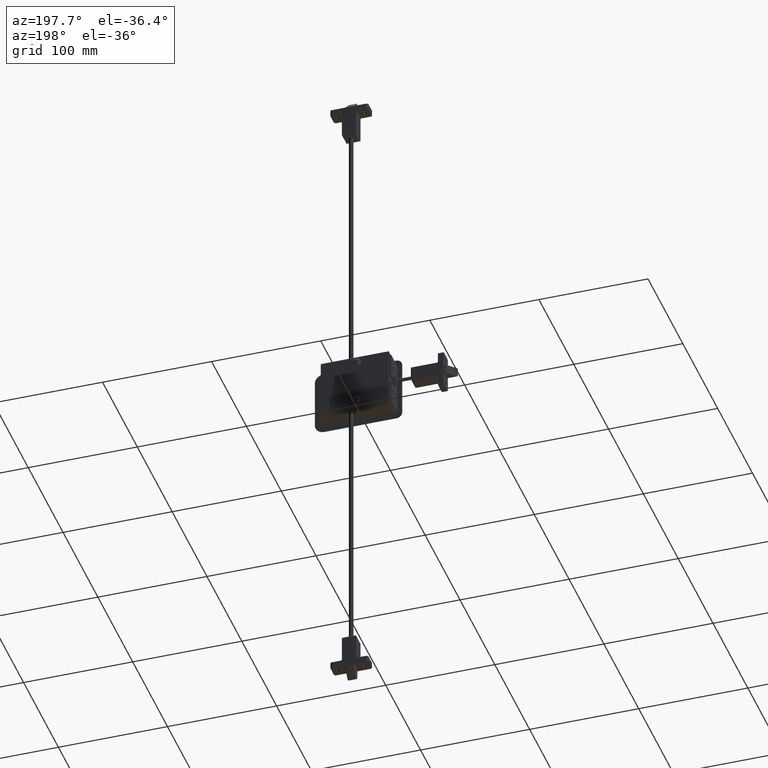
[diagram: clean part render]
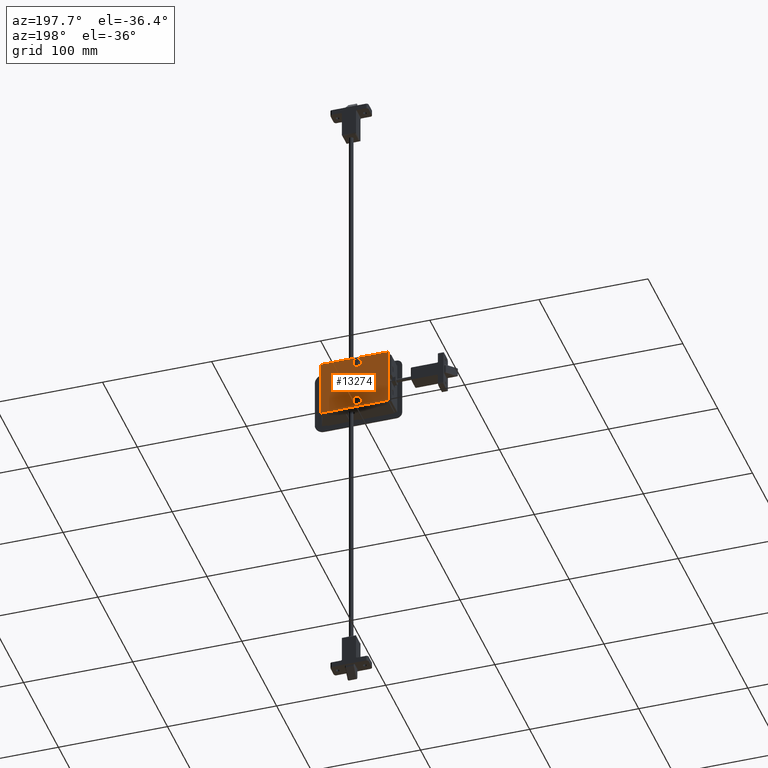
[diagram: same view with one face highlighted and labeled with its STEP entity id]
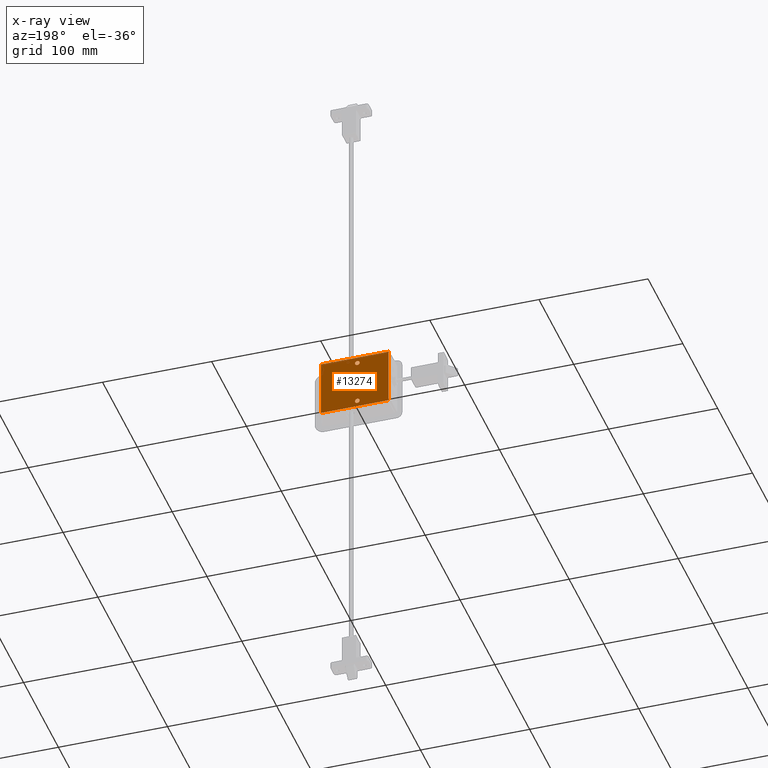
[diagram: x-ray of the same camera — body ghosted, the highlighted face saturated]
A machine part, auxiliary view. The second image highlights one B-rep face of the part: STEP entity #13274.
The next image is the same camera in x-ray: the body ghosted, the highlighted face saturated — about 0% of this face is hidden behind the body in this view.
In plain terms, the highlighted face is a freeform B-spline surface patch.
Its self-contained STEP definition (entity closure, byte-faithful):
#11853=CARTESIAN_POINT('',(22.006953846261300,43.750000000000000,-22.033489407781360));
#11854=VERTEX_POINT('',#11853);
#11860=CARTESIAN_POINT('',(20.499999682315671,43.750000000000000,-22.649999999999970));
#11861=VERTEX_POINT('',#11860);
#11862=CARTESIAN_POINT('',(20.499999682315671,43.750000000000000,-22.649999999999970));
#11863=CARTESIAN_POINT('',(20.743549814826540,43.750000000000007,-22.650179003490450));
#11864=CARTESIAN_POINT('',(21.300075521151019,43.749999999999922,-22.554351342063260));
#11865=CARTESIAN_POINT('',(21.783923978255832,43.750000000000050,-22.253354679047050));
#11866=CARTESIAN_POINT('',(22.006953846261300,43.750000000000000,-22.033489407781360));
#11867=B_SPLINE_CURVE_WITH_KNOTS('',3,(#11862,#11863,#11864,#11865,#11866),.UNSPECIFIED.,.F.,.U.,(4,1,4),(0.000000579519827,0.730693590432950,1.670006404911408),.UNSPECIFIED.);
#11868=EDGE_CURVE('',#11861,#11854,#11867,.T.);
#11870=CARTESIAN_POINT('',(18.350000000000001,43.750000000000000,-20.500000000000000));
#11871=VERTEX_POINT('',#11870);
#11872=CARTESIAN_POINT('',(18.350000000000001,43.750000000000000,-20.500000000000000));
#11873=CARTESIAN_POINT('',(18.349509081537530,43.750000000000021,-20.816728211946678));
#11874=CARTESIAN_POINT('',(18.468776864359569,43.750000000000043,-21.343984125196702));
#11875=CARTESIAN_POINT('',(18.864096221105981,43.749999999999922,-21.935224555355820));
#11876=CARTESIAN_POINT('',(19.481183320654392,43.750000000000192,-22.468351959470290));
#11877=CARTESIAN_POINT('',(20.077449883709331,43.749999999999872,-22.651381042715951));
#11878=CARTESIAN_POINT('',(20.499999682315671,43.750000000000000,-22.649999999999970));
#11879=B_SPLINE_CURVE_WITH_KNOTS('',3,(#11872,#11873,#11874,#11875,#11876,#11877,#11878),.UNSPECIFIED.,.F.,.U.,(4,1,1,1,4),(0.000002227310632,0.949955644128124,1.583371812779783,2.110957011027712,3.377550670595725),.UNSPECIFIED.);
#11880=EDGE_CURVE('',#11871,#11861,#11879,.T.);
#11882=CARTESIAN_POINT('',(20.500000317684339,43.750000000000000,-18.350000000000019));
#11883=VERTEX_POINT('',#11882);
#11884=CARTESIAN_POINT('',(20.500000317684339,43.750000000000000,-18.350000000000019));
#11885=CARTESIAN_POINT('',(20.183326115726199,43.749999999999943,-18.349562342178011));
#11886=CARTESIAN_POINT('',(19.515243159213210,43.750000000000107,-18.500215808438199));
#11887=CARTESIAN_POINT('',(18.617971425399400,43.749999999999879,-19.235262101407478));
#11888=CARTESIAN_POINT('',(18.348072779207680,43.750000000000071,-20.042326425261070));
#11889=CARTESIAN_POINT('',(18.350000000000001,43.750000000000000,-20.500000000000000));
#11890=B_SPLINE_CURVE_WITH_KNOTS('',3,(#11884,#11885,#11886,#11887,#11888,#11889),.UNSPECIFIED.,.F.,.U.,(4,1,1,4),(0.000002225637821,0.949955743484870,2.005310940079634,3.377551028734954),.UNSPECIFIED.);
#11891=EDGE_CURVE('',#11883,#11871,#11890,.T.);
#11893=CARTESIAN_POINT('',(22.033489520072401,43.750000000000000,-18.993046041418410));
#11894=VERTEX_POINT('',#11893);
#11895=CARTESIAN_POINT('',(22.033489520072401,43.750000000000000,-18.993046041418410));
#11896=CARTESIAN_POINT('',(21.859065196932921,43.750000000000021,-18.815292072171189));
#11897=CARTESIAN_POINT('',(21.388774736225649,43.749999999999957,-18.479686719389640));
#11898=CARTESIAN_POINT('',(20.820217218031608,43.749999999999979,-18.349464239655550));
#11899=CARTESIAN_POINT('',(20.500000317684339,43.750000000000000,-18.350000000000019));
#11900=B_SPLINE_CURVE_WITH_KNOTS('',3,(#11895,#11896,#11897,#11898,#11899),.UNSPECIFIED.,.F.,.U.,(4,1,4),(0.000000647408318,0.747121049704941,1.707544543402423),.UNSPECIFIED.);
#11901=EDGE_CURVE('',#11894,#11883,#11900,.T.);
#11977=CARTESIAN_POINT('',(22.649999999999999,43.750000000000000,-20.500000000000000));
#11978=VERTEX_POINT('',#11977);
#11979=CARTESIAN_POINT('',(22.649999999999999,43.750000000000000,-20.500000000000000));
#11980=CARTESIAN_POINT('',(22.650177555392990,43.749999999999993,-20.256448380300089));
#11981=CARTESIAN_POINT('',(22.554352934576311,43.750000000000057,-19.699927090781799));
#11982=CARTESIAN_POINT('',(22.253354657736828,43.749999999999957,-19.216075717112108));
#11983=CARTESIAN_POINT('',(22.033489520072401,43.750000000000000,-18.993046041418410));
#11984=B_SPLINE_CURVE_WITH_KNOTS('',3,(#11979,#11980,#11981,#11982,#11983),.UNSPECIFIED.,.F.,.U.,(4,1,4),(0.000000579545565,0.730693478946250,1.670006150221552),.UNSPECIFIED.);
#11985=EDGE_CURVE('',#11978,#11894,#11984,.T.);
#11987=CARTESIAN_POINT('',(22.006953846261300,43.750000000000000,-22.033489407781360));
#11988=CARTESIAN_POINT('',(22.235699321447932,43.750000000000050,-21.809422310553138));
#11989=CARTESIAN_POINT('',(22.550041675175549,43.750000000000007,-21.318057323818621));
#11990=CARTESIAN_POINT('',(22.650139470032659,43.749999999999979,-20.749021775235811));
#11991=CARTESIAN_POINT('',(22.649999999999999,43.750000000000000,-20.500000000000000));
#11992=B_SPLINE_CURVE_WITH_KNOTS('',3,(#11987,#11988,#11989,#11990,#11991),.UNSPECIFIED.,.F.,.U.,(4,1,4),(0.000000647436958,0.960424285150611,1.707544799524462),.UNSPECIFIED.);
#11993=EDGE_CURVE('',#11854,#11978,#11992,.T.);
#12033=CARTESIAN_POINT('',(22.006953846261300,43.750000000000000,18.966510592218640));
#12034=VERTEX_POINT('',#12033);
#12040=CARTESIAN_POINT('',(20.499999682315671,43.750000000000000,18.350000000000030));
#12041=VERTEX_POINT('',#12040);
#12042=CARTESIAN_POINT('',(20.499999682315671,43.750000000000000,18.350000000000030));
#12043=CARTESIAN_POINT('',(20.743545686632519,43.750000000000028,18.349838853173939));
#12044=CARTESIAN_POINT('',(21.300076129817018,43.750000000000021,18.445620418342280));
#12045=CARTESIAN_POINT('',(21.783924158926389,43.750000000000007,18.746660259355838));
#12046=CARTESIAN_POINT('',(22.006953846261300,43.750000000000000,18.966510592218640));
#12047=B_SPLINE_CURVE_WITH_KNOTS('',3,(#12042,#12043,#12044,#12045,#12046),.UNSPECIFIED.,.F.,.U.,(4,1,4),(0.000000579519966,0.730693590433029,1.670006404911405),.UNSPECIFIED.);
#12048=EDGE_CURVE('',#12041,#12034,#12047,.T.);
#12050=CARTESIAN_POINT('',(18.350000000000001,43.750000000000000,20.500000000000000));
#12051=VERTEX_POINT('',#12050);
#12052=CARTESIAN_POINT('',(18.350000000000001,43.750000000000000,20.500000000000000));
#12053=CARTESIAN_POINT('',(18.349883247218351,43.749999999999957,20.253751694987969));
#12054=CARTESIAN_POINT('',(18.441545691986750,43.749999999999972,19.726092408752031));
#12055=CARTESIAN_POINT('',(18.902034908813430,43.750000000000163,18.956528231486569));
#12056=CARTESIAN_POINT('',(19.655587389212879,43.749999999999638,18.453399589224919));
#12057=CARTESIAN_POINT('',(20.253783003131201,43.750000000000178,18.349926520932861));
#12058=CARTESIAN_POINT('',(20.499999682315671,43.750000000000000,18.350000000000030));
#12059=B_SPLINE_CURVE_WITH_KNOTS('',3,(#12052,#12053,#12054,#12055,#12056,#12057,#12058),.UNSPECIFIED.,.F.,.U.,(4,1,1,1,4),(0.000002227310616,0.738823032263391,1.583371812779873,2.638729865123342,3.377550670595726),.UNSPECIFIED.);
#12060=EDGE_CURVE('',#12051,#12041,#12059,.T.);
#12062=CARTESIAN_POINT('',(20.500000317684339,43.749999999999993,22.649999999999970));
#12063=VERTEX_POINT('',#12062);
#12064=CARTESIAN_POINT('',(20.500000317684339,43.749999999999993,22.649999999999970));
#12065=CARTESIAN_POINT('',(20.183288557798360,43.750000000000043,22.650457926932710));
#12066=CARTESIAN_POINT('',(19.585694642592120,43.749999999999950,22.515521193210802));
#12067=CARTESIAN_POINT('',(18.923194275851230,43.750000000000057,22.024192043108819));
#12068=CARTESIAN_POINT('',(18.468805579179271,43.749999999999943,21.343977020141821));
#12069=CARTESIAN_POINT('',(18.349500453558139,43.750000000000021,20.816710595408971));
#12070=CARTESIAN_POINT('',(18.350000000000001,43.750000000000000,20.500000000000000));
#12071=B_SPLINE_CURVE_WITH_KNOTS('',3,(#12064,#12065,#12066,#12067,#12068,#12069,#12070),.UNSPECIFIED.,.F.,.U.,(4,1,1,1,4),(0.000002225637791,0.949955743484859,1.794181275272841,2.427597511430180,3.377551028734952),.UNSPECIFIED.);
#12072=EDGE_CURVE('',#12063,#12051,#12071,.T.);
#12074=CARTESIAN_POINT('',(22.033489520072390,43.749999999999993,22.006953958581590));
#12075=VERTEX_POINT('',#12074);
#12076=CARTESIAN_POINT('',(22.033489520072390,43.749999999999993,22.006953958581590));
#12077=CARTESIAN_POINT('',(21.809422005565679,43.750000000000000,22.235698750883088));
#12078=CARTESIAN_POINT('',(21.318056935557671,43.749999999999950,22.550042048271919));
#12079=CARTESIAN_POINT('',(20.749022612829719,43.749999999999993,22.650138889271592));
#12080=CARTESIAN_POINT('',(20.500000317684339,43.749999999999993,22.649999999999970));
#12081=B_SPLINE_CURVE_WITH_KNOTS('',3,(#12076,#12077,#12078,#12079,#12080),.UNSPECIFIED.,.F.,.U.,(4,1,4),(0.000000647408544,0.960424141145897,1.707544543402414),.UNSPECIFIED.);
#12082=EDGE_CURVE('',#12075,#12063,#12081,.T.);
#12157=CARTESIAN_POINT('',(22.649999999999999,43.750000000000000,20.500000000000000));
#12158=VERTEX_POINT('',#12157);
#12159=CARTESIAN_POINT('',(22.649999999999999,43.750000000000000,20.500000000000000));
#12160=CARTESIAN_POINT('',(22.650469528133019,43.750000000000007,20.813158454760881));
#12161=CARTESIAN_POINT('',(22.526111420103572,43.749999999999993,21.369311348689319));
#12162=CARTESIAN_POINT('',(22.204284470082460,43.750000000000007,21.833332690497439));
#12163=CARTESIAN_POINT('',(22.033489520072390,43.749999999999993,22.006953958581590));
#12164=B_SPLINE_CURVE_WITH_KNOTS('',3,(#12159,#12160,#12161,#12162,#12163),.UNSPECIFIED.,.F.,.U.,(4,1,4),(0.000000579545428,0.939313250781041,1.670006150221550),.UNSPECIFIED.);
#12165=EDGE_CURVE('',#12158,#12075,#12164,.T.);
#12167=CARTESIAN_POINT('',(22.006953846261300,43.750000000000000,18.966510592218640));
#12168=CARTESIAN_POINT('',(22.235733587467081,43.750000000000099,19.190574941759959));
#12169=CARTESIAN_POINT('',(22.549957977390370,43.749999999999801,19.681953418574111));
#12170=CARTESIAN_POINT('',(22.650191406120172,43.750000000000142,20.250970874763080));
#12171=CARTESIAN_POINT('',(22.649999999999999,43.750000000000000,20.500000000000000));
#12172=B_SPLINE_CURVE_WITH_KNOTS('',3,(#12167,#12168,#12169,#12170,#12171),.UNSPECIFIED.,.F.,.U.,(4,1,4),(0.000000647436865,0.960424285150654,1.707544799524462),.UNSPECIFIED.);
#12173=EDGE_CURVE('',#12034,#12158,#12172,.T.);
#12869=CARTESIAN_POINT('',(54.0,43.750000000000000,-26.300000000000001));
#12870=VERTEX_POINT('',#12869);
#12880=CARTESIAN_POINT('',(54.0,43.750000000000000,26.300000000000001));
#12881=VERTEX_POINT('',#12880);
#12882=CARTESIAN_POINT('',(54.0,43.750000000000000,-26.300000000000001));
#12883=CARTESIAN_POINT('',(54.0,43.750000000000000,26.300000000000001));
#12884=QUASI_UNIFORM_CURVE('',1,(#12882,#12883),.UNSPECIFIED.,.F.,.U.);
#12885=EDGE_CURVE('',#12870,#12881,#12884,.T.);
#12959=CARTESIAN_POINT('',(-8.0,43.750000000000000,26.300000000000001));
#12960=VERTEX_POINT('',#12959);
#12970=CARTESIAN_POINT('',(-8.0,43.750000000000000,-26.300000000000001));
#12971=VERTEX_POINT('',#12970);
#12972=CARTESIAN_POINT('',(-8.0,43.750000000000000,-26.300000000000001));
#12973=CARTESIAN_POINT('',(-8.0,43.750000000000000,26.300000000000001));
#12974=QUASI_UNIFORM_CURVE('',1,(#12972,#12973),.UNSPECIFIED.,.F.,.U.);
#12975=EDGE_CURVE('',#12971,#12960,#12974,.T.);
#13082=CARTESIAN_POINT('',(-8.0,43.750000000000000,26.300000000000001));
#13083=CARTESIAN_POINT('',(54.0,43.750000000000000,26.300000000000001));
#13084=QUASI_UNIFORM_CURVE('',1,(#13082,#13083),.UNSPECIFIED.,.F.,.U.);
#13085=EDGE_CURVE('',#12960,#12881,#13084,.T.);
#13113=CARTESIAN_POINT('',(-8.0,43.750000000000000,-26.300000000000001));
#13114=CARTESIAN_POINT('',(54.0,43.750000000000000,-26.300000000000001));
#13115=QUASI_UNIFORM_CURVE('',1,(#13113,#13114),.UNSPECIFIED.,.F.,.U.);
#13116=EDGE_CURVE('',#12971,#12870,#13115,.T.);
#13247=CARTESIAN_POINT('',(-11.096899879831970,43.750000000000000,-28.927369216355689));
#13248=CARTESIAN_POINT('',(-11.096899879831970,43.750000000000000,28.927367335233100));
#13249=CARTESIAN_POINT('',(57.096901542801561,43.750000000000000,-28.927369216355689));
#13250=CARTESIAN_POINT('',(57.096901542801561,43.750000000000000,28.927367335233100));
#13251=B_SPLINE_SURFACE_WITH_KNOTS('',1,1,((#13247,#13249),(#13248,#13250)),.UNSPECIFIED.,.F.,.F.,.U.,(2,2),(2,2),(0.0,57.854736551588793),(0.0,68.193801422633527),.UNSPECIFIED.);
#13252=ORIENTED_EDGE('',*,*,#12885,.F.);
#13253=ORIENTED_EDGE('',*,*,#13116,.F.);
#13254=ORIENTED_EDGE('',*,*,#12975,.T.);
#13255=ORIENTED_EDGE('',*,*,#13085,.T.);
#13256=EDGE_LOOP('',(#13252,#13253,#13254,#13255));
#13257=FACE_OUTER_BOUND('',#13256,.T.);
#13258=ORIENTED_EDGE('',*,*,#12072,.T.);
#13259=ORIENTED_EDGE('',*,*,#12060,.T.);
#13260=ORIENTED_EDGE('',*,*,#12048,.T.);
#13261=ORIENTED_EDGE('',*,*,#12173,.T.);
#13262=ORIENTED_EDGE('',*,*,#12165,.T.);
#13263=ORIENTED_EDGE('',*,*,#12082,.T.);
#13264=EDGE_LOOP('',(#13258,#13259,#13260,#13261,#13262,#13263));
#13265=FACE_BOUND('',#13264,.T.);
#13266=ORIENTED_EDGE('',*,*,#11891,.T.);
#13267=ORIENTED_EDGE('',*,*,#11880,.T.);
#13268=ORIENTED_EDGE('',*,*,#11868,.T.);
#13269=ORIENTED_EDGE('',*,*,#11993,.T.);
#13270=ORIENTED_EDGE('',*,*,#11985,.T.);
#13271=ORIENTED_EDGE('',*,*,#11901,.T.);
#13272=EDGE_LOOP('',(#13266,#13267,#13268,#13269,#13270,#13271));
#13273=FACE_BOUND('',#13272,.T.);
#13274=ADVANCED_FACE('',(#13257,#13265,#13273),#13251,.T.);